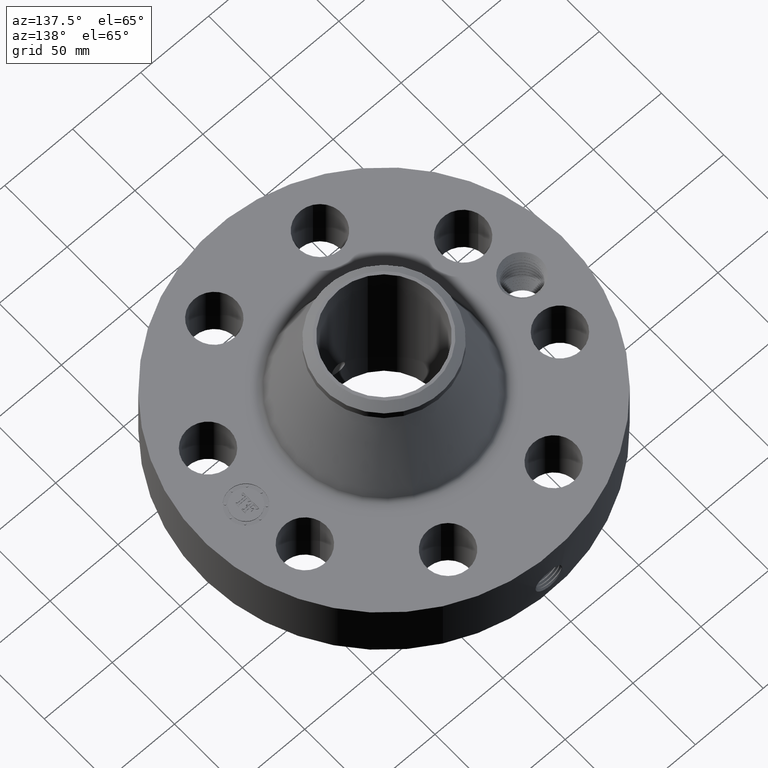
[diagram: clean part render]
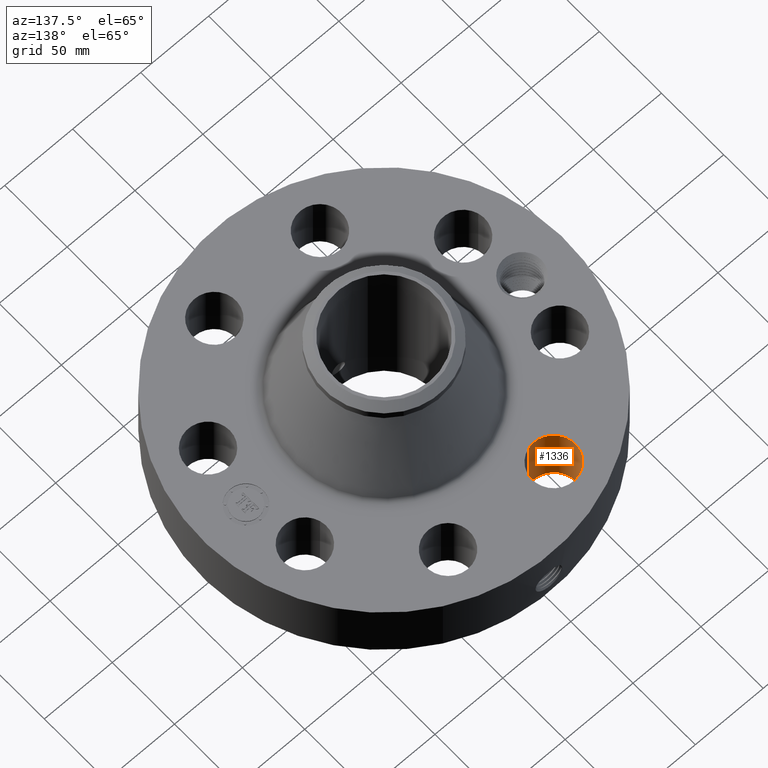
[diagram: same view with one face highlighted and labeled with its STEP entity id]
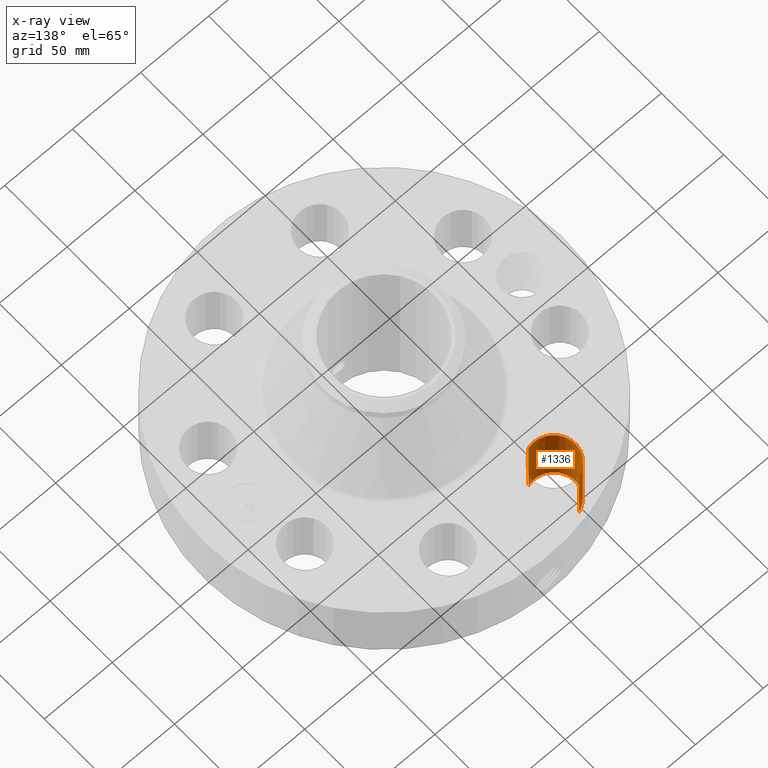
[diagram: x-ray of the same camera — body ghosted, the highlighted face saturated]
A machine part, auxiliary view. The second image highlights one B-rep face of the part: STEP entity #1336.
The next image is the same camera in x-ray: the body ghosted, the highlighted face saturated — about 4% of this face is hidden behind the body in this view.
In plain terms, the highlighted cylindrical surface (edge-blend (fillet) strip) has radius 15.875 mm, axis along (0, 0, -1).
Its self-contained STEP definition (entity closure, byte-faithful):
#339=AXIS2_PLACEMENT_3D('Circle Axis2P3D',#337,#338,$) ;
#672=AXIS2_PLACEMENT_3D('Circle Axis2P3D',#670,#671,$) ;
#1318=AXIS2_PLACEMENT_3D('Cylinder Axis2P3D',#1315,#1316,#1317) ;
#337=CARTESIAN_POINT('Axis2P3D Location',(-1.53073372947,3.69551813006,0.250000000001)) ;
#341=CARTESIAN_POINT('Vertex',(-1.3547715225,3.09579961132,0.250000000001)) ;
#343=CARTESIAN_POINT('Vertex',(-1.70669593643,4.2952366488,0.250000000001)) ;
#665=CARTESIAN_POINT('Vertex',(-1.70669593643,4.2952366488,2.13000000001)) ;
#667=CARTESIAN_POINT('Vertex',(-1.3547715225,3.09579961132,2.13000000001)) ;
#670=CARTESIAN_POINT('Axis2P3D Location',(-1.53073372947,3.69551813006,2.13000000001)) ;
#1315=CARTESIAN_POINT('Axis2P3D Location',(-1.53073372947,3.69551813006,2.12606299213)) ;
#1320=CARTESIAN_POINT('Line Origine',(-1.3547715225,3.09579961132,1.19)) ;
#1325=CARTESIAN_POINT('Line Origine',(-1.70669593643,4.2952366488,1.19)) ;
#338=DIRECTION('Axis2P3D Direction',(0.,0.,-0.0393700787402)) ;
#671=DIRECTION('Axis2P3D Direction',(0.,0.,-0.0393700787402)) ;
#1316=DIRECTION('Axis2P3D Direction',(0.,0.,-0.0393700787402)) ;
#1317=DIRECTION('Axis2P3D XDirection',(-0.0110842335096,0.0377775444876,0.)) ;
#1321=DIRECTION('Vector Direction',(0.,0.,-0.0393700787402)) ;
#1326=DIRECTION('Vector Direction',(0.,0.,-0.0393700787402)) ;
#1322=VECTOR('Line Direction',#1321,0.0393700787402) ;
#1327=VECTOR('Line Direction',#1326,0.0393700787402) ;
#1331=ORIENTED_EDGE('',*,*,#1324,.F.) ;
#1332=ORIENTED_EDGE('',*,*,#345,.T.) ;
#1333=ORIENTED_EDGE('',*,*,#1329,.T.) ;
#1334=ORIENTED_EDGE('',*,*,#674,.F.) ;
#1336=ADVANCED_FACE('PartBody',(#1335),#1319,.F.) ;
#340=CIRCLE('generated circle',#339,0.625000000003) ;
#673=CIRCLE('generated circle',#672,0.625000000003) ;
#1319=CYLINDRICAL_SURFACE('generated cylinder',#1318,0.625000000003) ;
#345=EDGE_CURVE('',#342,#344,#340,.T.) ;
#674=EDGE_CURVE('',#668,#666,#673,.T.) ;
#1324=EDGE_CURVE('',#342,#668,#1323,.F.) ;
#1329=EDGE_CURVE('',#344,#666,#1328,.F.) ;
#1330=EDGE_LOOP('',(#1331,#1332,#1333,#1334)) ;
#1335=FACE_OUTER_BOUND('',#1330,.T.) ;
#1323=LINE('Line',#1320,#1322) ;
#1328=LINE('Line',#1325,#1327) ;
#342=VERTEX_POINT('',#341) ;
#344=VERTEX_POINT('',#343) ;
#666=VERTEX_POINT('',#665) ;
#668=VERTEX_POINT('',#667) ;